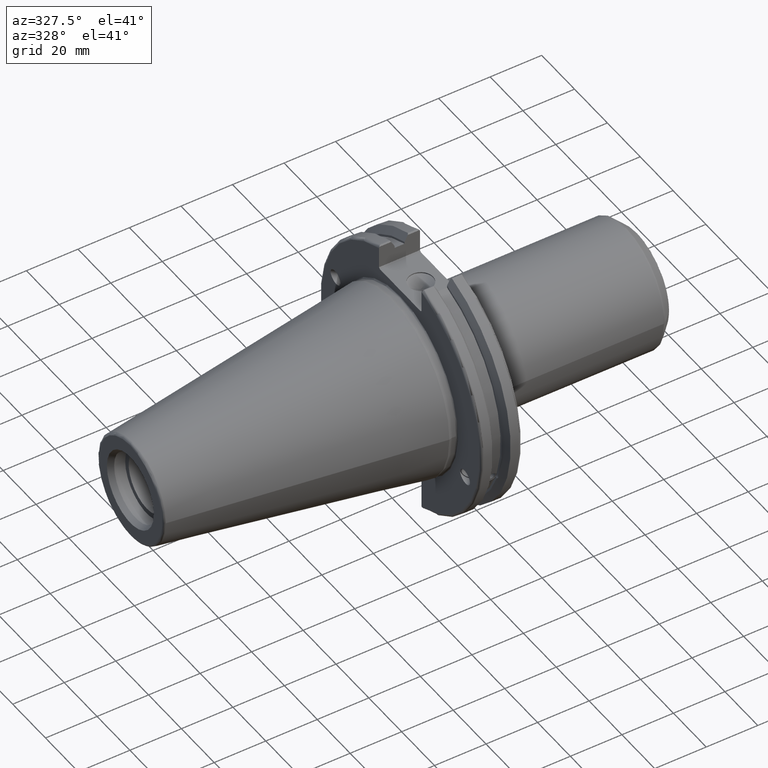
[diagram: clean part render]
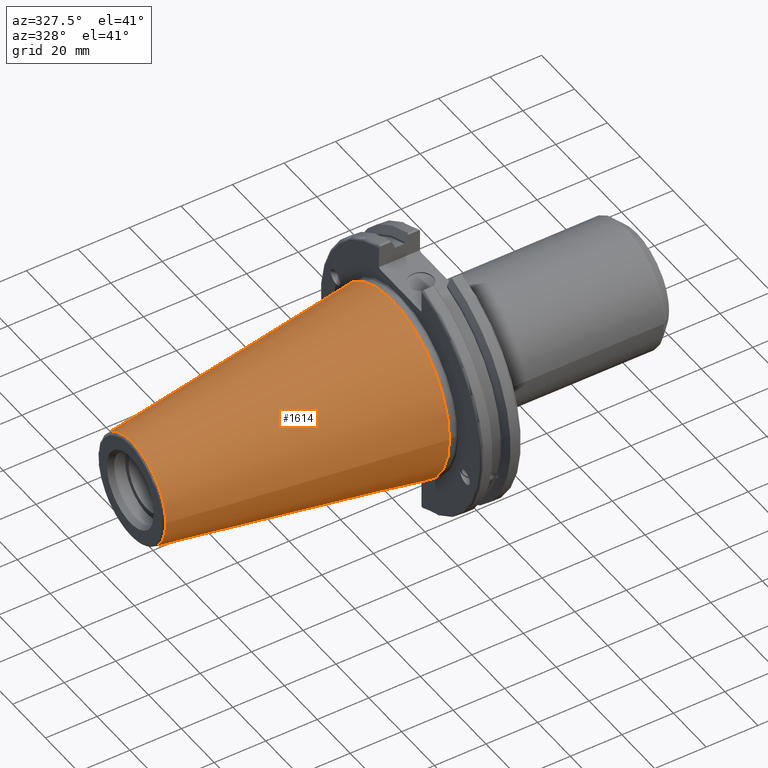
[diagram: same view with one face highlighted and labeled with its STEP entity id]
A machine part, auxiliary view. The second image highlights one B-rep face of the part: STEP entity #1614.
In plain terms, the highlighted conical surface has half-angle 8.297 deg.
Its self-contained STEP definition (entity closure, byte-faithful):
#51=CONICAL_SURFACE('',#1799,27.5166666666666,0.14481249823894);
#180=LINE('',#3316,#274);
#274=VECTOR('',#2189,27.5166666666666);
#407=FACE_OUTER_BOUND('',#522,.T.);
#522=EDGE_LOOP('',(#1382,#1383,#1384,#1385,#1386));
#617=CIRCLE('',#1793,20.233121911427);
#618=CIRCLE('',#1794,20.233121911427);
#622=CIRCLE('',#1800,34.925);
#784=VERTEX_POINT('',#3303);
#785=VERTEX_POINT('',#3304);
#788=VERTEX_POINT('',#3314);
#999=EDGE_CURVE('',#784,#785,#617,.T.);
#1000=EDGE_CURVE('',#785,#784,#618,.T.);
#1004=EDGE_CURVE('',#788,#788,#622,.T.);
#1005=EDGE_CURVE('',#788,#785,#180,.T.);
#1382=ORIENTED_EDGE('',*,*,#1004,.F.);
#1383=ORIENTED_EDGE('',*,*,#1005,.T.);
#1384=ORIENTED_EDGE('',*,*,#999,.F.);
#1385=ORIENTED_EDGE('',*,*,#1000,.F.);
#1386=ORIENTED_EDGE('',*,*,#1005,.F.);
#1614=ADVANCED_FACE('',(#407),#51,.T.);
#1793=AXIS2_PLACEMENT_3D('',#3305,#2173,#2174);
#1794=AXIS2_PLACEMENT_3D('',#3306,#2175,#2176);
#1799=AXIS2_PLACEMENT_3D('',#3313,#2185,#2186);
#1800=AXIS2_PLACEMENT_3D('',#3315,#2187,#2188);
#2173=DIRECTION('center_axis',(-1.,0.,0.));
#2174=DIRECTION('ref_axis',(0.,-1.,3.06161699786838E-17));
#2175=DIRECTION('center_axis',(-1.,0.,0.));
#2176=DIRECTION('ref_axis',(0.,-1.,3.06161699786838E-17));
#2185=DIRECTION('center_axis',(1.,0.,0.));
#2186=DIRECTION('ref_axis',(0.,1.,0.));
#2187=DIRECTION('center_axis',(1.,0.,0.));
#2188=DIRECTION('ref_axis',(0.,0.,-1.));
#2189=DIRECTION('',(-0.989532981063281,0.144306893071729,1.76724974695192E-17));
#3303=CARTESIAN_POINT('',(-100.744306893072,-2.47784279855872E-15,20.233121911427));
#3304=CARTESIAN_POINT('',(-100.744306893072,-20.233121911427,-2.47784279855872E-15));
#3305=CARTESIAN_POINT('Origin',(-100.744306893072,0.,-3.09730349819841E-15));
#3306=CARTESIAN_POINT('Origin',(-100.744306893072,0.,-3.09730349819841E-15));
#3313=CARTESIAN_POINT('Origin',(-50.8,0.,0.));
#3314=CARTESIAN_POINT('',(-8.88178419700125E-15,-34.925,-4.27707894602213E-15));
#3315=CARTESIAN_POINT('Origin',(0.,0.,0.));
#3316=CARTESIAN_POINT('',(-50.8,-27.5166666666666,-3.3698197756538E-15));